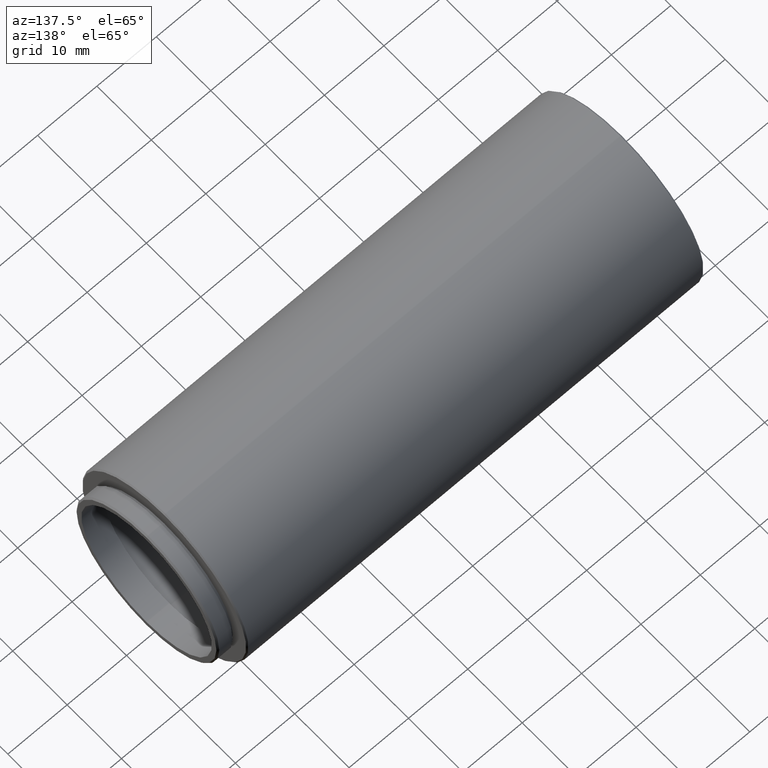
[diagram: clean part render]
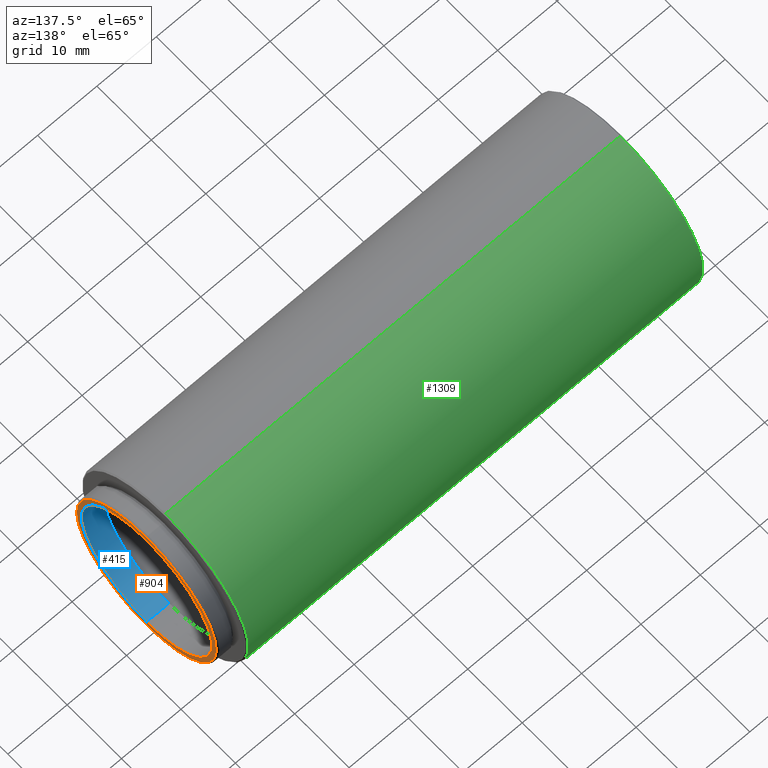
[diagram: same view with three faces highlighted in distinct colors, each labeled with its STEP entity id]
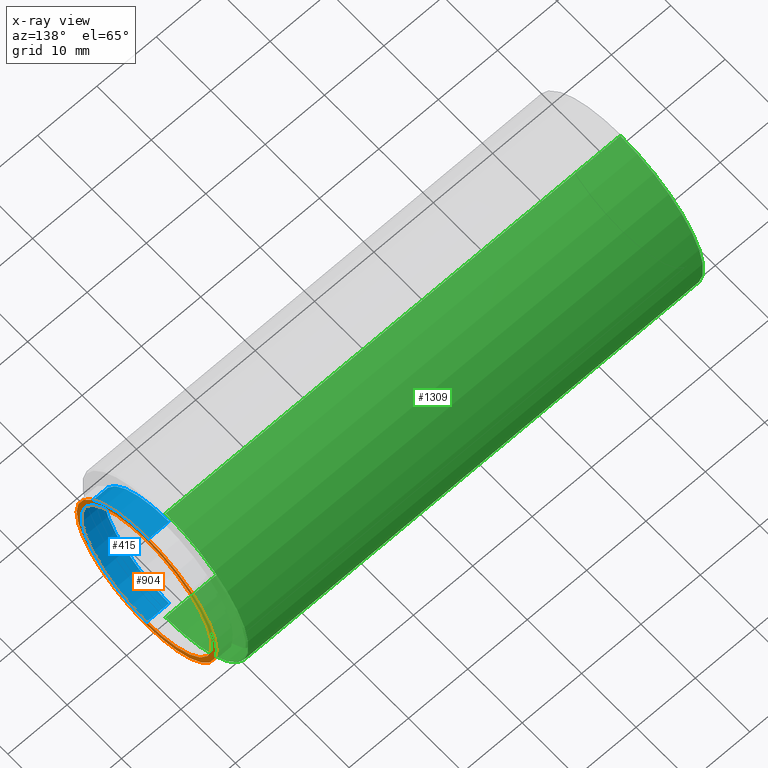
[diagram: x-ray of the same camera — body ghosted, the three highlighted faces saturated]
A machine part, auxiliary view with three faces highlighted in distinct colors.
The next image is the same camera in x-ray (body ghosted, the three faces saturated) — at least one of them is partly hidden behind the body in this view.
Their STEP definitions:

[orange] entity #904 — the highlighted planar face has unit normal (1, 0, 0).
#15 = VERTEX_POINT ( 'NONE', #1342 ) ;
#20 = DIRECTION ( 'NONE',  ( 0.000000000000000000, 0.000000000000000000, -1.000000000000000000 ) ) ;
#64 = CARTESIAN_POINT ( 'NONE',  ( 6.525999999999982926, -20.10857142857141966, 0.000000000000000000 ) ) ;
#72 = VERTEX_POINT ( 'NONE', #1327 ) ;
#135 = CARTESIAN_POINT ( 'NONE',  ( 6.525999999999982926, -20.10857142857141966, 0.000000000000000000 ) ) ;
#161 = AXIS2_PLACEMENT_3D ( 'NONE', #534, #1045, #1387 ) ;
#194 = DIRECTION ( 'NONE',  ( 0.000000000000000000, 0.000000000000000000, -1.000000000000000000 ) ) ;
#293 = CIRCLE ( 'NONE', #161, 12.00000000000000178 ) ;
#375 = EDGE_CURVE ( 'NONE', #15, #1069, #710, .T. ) ;
#428 = CIRCLE ( 'NONE', #791, 12.00000000000000178 ) ;
#435 = PLANE ( 'NONE',  #1187 ) ;
#534 = CARTESIAN_POINT ( 'NONE',  ( 6.525999999999982926, -20.10857142857141966, 0.000000000000000000 ) ) ;
#578 = CARTESIAN_POINT ( 'NONE',  ( 6.525999999999982926, -20.10857142857141966, 0.000000000000000000 ) ) ;
#632 = AXIS2_PLACEMENT_3D ( 'NONE', #578, #720, #1421 ) ;
#681 = DIRECTION ( 'NONE',  ( 0.000000000000000000, 0.000000000000000000, -1.000000000000000000 ) ) ;
#706 = FACE_OUTER_BOUND ( 'NONE', #1151, .T. ) ;
#710 = CIRCLE ( 'NONE', #632, 12.84999999999999964 ) ;
#712 = EDGE_CURVE ( 'NONE', #72, #832, #293, .T. ) ;
#720 = DIRECTION ( 'NONE',  ( 1.000000000000000000, 0.000000000000000000, 0.000000000000000000 ) ) ;
#756 = DIRECTION ( 'NONE',  ( 1.000000000000000000, 0.000000000000000000, 0.000000000000000000 ) ) ;
#791 = AXIS2_PLACEMENT_3D ( 'NONE', #135, #756, #20 ) ;
#810 = DIRECTION ( 'NONE',  ( 1.000000000000000000, 0.000000000000000000, 0.000000000000000000 ) ) ;
#832 = VERTEX_POINT ( 'NONE', #1191 ) ;
#863 = EDGE_CURVE ( 'NONE', #1069, #15, #954, .T. ) ;
#876 = FACE_BOUND ( 'NONE', #1318, .T. ) ;
#885 = ORIENTED_EDGE ( 'NONE', *, *, #712, .F. ) ;
#904 = ADVANCED_FACE ( 'NONE', ( #706, #876 ), #435, .T. ) ;
#941 = DIRECTION ( 'NONE',  ( 1.000000000000000000, 0.000000000000000000, 0.000000000000000000 ) ) ;
#954 = CIRCLE ( 'NONE', #1143, 12.84999999999999964 ) ;
#989 = ORIENTED_EDGE ( 'NONE', *, *, #863, .T. ) ;
#1045 = DIRECTION ( 'NONE',  ( 1.000000000000000000, 0.000000000000000000, 0.000000000000000000 ) ) ;
#1069 = VERTEX_POINT ( 'NONE', #1349 ) ;
#1112 = ORIENTED_EDGE ( 'NONE', *, *, #375, .T. ) ;
#1143 = AXIS2_PLACEMENT_3D ( 'NONE', #1528, #810, #681 ) ;
#1151 = EDGE_LOOP ( 'NONE', ( #989, #1112 ) ) ;
#1167 = ORIENTED_EDGE ( 'NONE', *, *, #1502, .F. ) ;
#1187 = AXIS2_PLACEMENT_3D ( 'NONE', #64, #941, #194 ) ;
#1191 = CARTESIAN_POINT ( 'NONE',  ( 6.525999999999982926, -20.10857142857141966, -12.00000000000000178 ) ) ;
#1318 = EDGE_LOOP ( 'NONE', ( #1167, #885 ) ) ;
#1327 = CARTESIAN_POINT ( 'NONE',  ( 6.525999999999982926, -20.10857142857141966, 12.00000000000000178 ) ) ;
#1342 = CARTESIAN_POINT ( 'NONE',  ( 6.525999999999982926, -20.10857142857141966, -12.84999999999999964 ) ) ;
#1349 = CARTESIAN_POINT ( 'NONE',  ( 6.525999999999982926, -20.10857142857141966, 12.84999999999999964 ) ) ;
#1387 = DIRECTION ( 'NONE',  ( 0.000000000000000000, 0.000000000000000000, -1.000000000000000000 ) ) ;
#1421 = DIRECTION ( 'NONE',  ( 0.000000000000000000, 0.000000000000000000, -1.000000000000000000 ) ) ;
#1502 = EDGE_CURVE ( 'NONE', #832, #72, #428, .T. ) ;
#1528 = CARTESIAN_POINT ( 'NONE',  ( 6.525999999999982926, -20.10857142857141966, 0.000000000000000000 ) ) ;

[blue] entity #415 — the highlighted cylindrical surface (partial cylindrical patch) has radius 12 mm, axis along (1, -0, -0).
#7 = CARTESIAN_POINT ( 'NONE',  ( 2.725999999999982659, -20.10857142857141966, -12.00000000000000178 ) ) ;
#72 = VERTEX_POINT ( 'NONE', #1327 ) ;
#73 = DIRECTION ( 'NONE',  ( 1.000000000000000000, -0.000000000000000000, -0.000000000000000000 ) ) ;
#116 = EDGE_CURVE ( 'NONE', #1415, #1524, #1052, .T. ) ;
#161 = AXIS2_PLACEMENT_3D ( 'NONE', #534, #1045, #1387 ) ;
#170 = AXIS2_PLACEMENT_3D ( 'NONE', #252, #1251, #761 ) ;
#252 = CARTESIAN_POINT ( 'NONE',  ( 2.725999999999982659, -20.10857142857141966, 0.000000000000000000 ) ) ;
#277 = CYLINDRICAL_SURFACE ( 'NONE', #302, 12.00000000000000178 ) ;
#293 = CIRCLE ( 'NONE', #161, 12.00000000000000178 ) ;
#302 = AXIS2_PLACEMENT_3D ( 'NONE', #566, #73, #1074 ) ;
#346 = CARTESIAN_POINT ( 'NONE',  ( -73.47400000000003217, -20.10857142857141966, 12.00000000000000178 ) ) ;
#415 = ADVANCED_FACE ( 'NONE', ( #669 ), #277, .F. ) ;
#430 = VECTOR ( 'NONE', #1552, 1000.000000000000000 ) ;
#534 = CARTESIAN_POINT ( 'NONE',  ( 6.525999999999982926, -20.10857142857141966, 0.000000000000000000 ) ) ;
#537 = EDGE_CURVE ( 'NONE', #1415, #72, #1532, .T. ) ;
#566 = CARTESIAN_POINT ( 'NONE',  ( -73.47400000000003217, -20.10857142857141966, 0.000000000000000000 ) ) ;
#633 = ORIENTED_EDGE ( 'NONE', *, *, #712, .T. ) ;
#669 = FACE_OUTER_BOUND ( 'NONE', #983, .T. ) ;
#712 = EDGE_CURVE ( 'NONE', #72, #832, #293, .T. ) ;
#761 = DIRECTION ( 'NONE',  ( 0.000000000000000000, 0.000000000000000000, -1.000000000000000000 ) ) ;
#762 = ORIENTED_EDGE ( 'NONE', *, *, #1345, .F. ) ;
#832 = VERTEX_POINT ( 'NONE', #1191 ) ;
#949 = ORIENTED_EDGE ( 'NONE', *, *, #537, .T. ) ;
#971 = DIRECTION ( 'NONE',  ( 1.000000000000000000, -0.000000000000000000, -0.000000000000000000 ) ) ;
#983 = EDGE_LOOP ( 'NONE', ( #1217, #949, #633, #762 ) ) ;
#1045 = DIRECTION ( 'NONE',  ( 1.000000000000000000, 0.000000000000000000, 0.000000000000000000 ) ) ;
#1052 = CIRCLE ( 'NONE', #170, 12.00000000000000178 ) ;
#1074 = DIRECTION ( 'NONE',  ( 0.000000000000000000, 0.000000000000000000, -1.000000000000000000 ) ) ;
#1096 = CARTESIAN_POINT ( 'NONE',  ( 2.725999999999982659, -20.10857142857141966, 12.00000000000000178 ) ) ;
#1100 = LINE ( 'NONE', #1425, #430 ) ;
#1191 = CARTESIAN_POINT ( 'NONE',  ( 6.525999999999982926, -20.10857142857141966, -12.00000000000000178 ) ) ;
#1217 = ORIENTED_EDGE ( 'NONE', *, *, #116, .F. ) ;
#1251 = DIRECTION ( 'NONE',  ( 1.000000000000000000, 0.000000000000000000, 0.000000000000000000 ) ) ;
#1327 = CARTESIAN_POINT ( 'NONE',  ( 6.525999999999982926, -20.10857142857141966, 12.00000000000000178 ) ) ;
#1345 = EDGE_CURVE ( 'NONE', #1524, #832, #1100, .T. ) ;
#1387 = DIRECTION ( 'NONE',  ( 0.000000000000000000, 0.000000000000000000, -1.000000000000000000 ) ) ;
#1393 = VECTOR ( 'NONE', #971, 1000.000000000000000 ) ;
#1415 = VERTEX_POINT ( 'NONE', #1096 ) ;
#1425 = CARTESIAN_POINT ( 'NONE',  ( -73.47400000000003217, -20.10857142857141966, -12.00000000000000178 ) ) ;
#1524 = VERTEX_POINT ( 'NONE', #7 ) ;
#1532 = LINE ( 'NONE', #346, #1393 ) ;
#1552 = DIRECTION ( 'NONE',  ( 1.000000000000000000, -0.000000000000000000, -0.000000000000000000 ) ) ;

[green] entity #1309 — the highlighted cylindrical surface (partial cylindrical patch) has radius 15.25 mm, axis along (-1, -0, -0).
#5 = EDGE_CURVE ( 'NONE', #883, #1412, #297, .T. ) ;
#16 = AXIS2_PLACEMENT_3D ( 'NONE', #1055, #40, #1402 ) ;
#40 = DIRECTION ( 'NONE',  ( -1.000000000000000000, -0.000000000000000000, -0.000000000000000000 ) ) ;
#51 = DIRECTION ( 'NONE',  ( -1.000000000000000000, 0.000000000000000000, 0.000000000000000000 ) ) ;
#67 = EDGE_CURVE ( 'NONE', #1113, #1412, #396, .T. ) ;
#69 = AXIS2_PLACEMENT_3D ( 'NONE', #1395, #51, #921 ) ;
#186 = LINE ( 'NONE', #1103, #1146 ) ;
#219 = CIRCLE ( 'NONE', #69, 15.25000000000000000 ) ;
#297 = CIRCLE ( 'NONE', #1043, 15.25000000000000000 ) ;
#339 = DIRECTION ( 'NONE',  ( 0.000000000000000000, 0.000000000000000000, 1.000000000000000000 ) ) ;
#371 = CARTESIAN_POINT ( 'NONE',  ( 3.325999999999999623, -20.10857142857141611, -15.25000000000000000 ) ) ;
#396 = LINE ( 'NONE', #473, #1218 ) ;
#448 = CARTESIAN_POINT ( 'NONE',  ( -73.27400000000002933, -20.10857142857141966, 0.000000000000000000 ) ) ;
#473 = CARTESIAN_POINT ( 'NONE',  ( 3.525999999999982926, -20.10857142857141966, 15.25000000000000000 ) ) ;
#523 = ORIENTED_EDGE ( 'NONE', *, *, #67, .F. ) ;
#548 = EDGE_CURVE ( 'NONE', #673, #883, #186, .T. ) ;
#635 = EDGE_LOOP ( 'NONE', ( #1346, #1384, #1454, #523 ) ) ;
#644 = FACE_OUTER_BOUND ( 'NONE', #635, .T. ) ;
#673 = VERTEX_POINT ( 'NONE', #371 ) ;
#833 = CARTESIAN_POINT ( 'NONE',  ( -73.27400000000002933, -20.10857142857141966, 15.25000000000000000 ) ) ;
#883 = VERTEX_POINT ( 'NONE', #1420 ) ;
#921 = DIRECTION ( 'NONE',  ( 0.000000000000000000, 0.000000000000000000, -1.000000000000000000 ) ) ;
#1043 = AXIS2_PLACEMENT_3D ( 'NONE', #448, #1117, #339 ) ;
#1055 = CARTESIAN_POINT ( 'NONE',  ( 3.525999999999982926, -20.10857142857141966, 0.000000000000000000 ) ) ;
#1103 = CARTESIAN_POINT ( 'NONE',  ( 3.525999999999982926, -20.10857142857141611, -15.25000000000000000 ) ) ;
#1113 = VERTEX_POINT ( 'NONE', #1144 ) ;
#1117 = DIRECTION ( 'NONE',  ( 1.000000000000000000, 0.000000000000000000, 0.000000000000000000 ) ) ;
#1144 = CARTESIAN_POINT ( 'NONE',  ( 3.325999999999999623, -20.10857142857141966, 15.25000000000000000 ) ) ;
#1146 = VECTOR ( 'NONE', #1326, 1000.000000000000000 ) ;
#1218 = VECTOR ( 'NONE', #1569, 1000.000000000000000 ) ;
#1279 = EDGE_CURVE ( 'NONE', #1113, #673, #219, .T. ) ;
#1309 = ADVANCED_FACE ( 'NONE', ( #644 ), #1546, .T. ) ;
#1326 = DIRECTION ( 'NONE',  ( -1.000000000000000000, -0.000000000000000000, -0.000000000000000000 ) ) ;
#1346 = ORIENTED_EDGE ( 'NONE', *, *, #1279, .T. ) ;
#1384 = ORIENTED_EDGE ( 'NONE', *, *, #548, .T. ) ;
#1395 = CARTESIAN_POINT ( 'NONE',  ( 3.325999999999999623, -20.10857142857141966, 0.000000000000000000 ) ) ;
#1402 = DIRECTION ( 'NONE',  ( 0.000000000000000000, 0.000000000000000000, 1.000000000000000000 ) ) ;
#1412 = VERTEX_POINT ( 'NONE', #833 ) ;
#1420 = CARTESIAN_POINT ( 'NONE',  ( -73.27400000000002933, -20.10857142857141611, -15.25000000000000000 ) ) ;
#1454 = ORIENTED_EDGE ( 'NONE', *, *, #5, .T. ) ;
#1546 = CYLINDRICAL_SURFACE ( 'NONE', #16, 15.25000000000000000 ) ;
#1569 = DIRECTION ( 'NONE',  ( -1.000000000000000000, -0.000000000000000000, -0.000000000000000000 ) ) ;